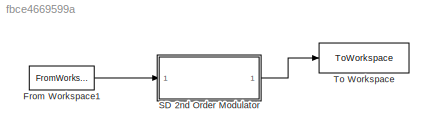
MODEL slx_fbce4669599a
KIND model
CONFIG AbsTol = auto
CONFIG EnableMultiTasking = off
CONFIG FixedStep = auto
CONFIG MaxStep = auto
CONFIG MinStep = auto
CONFIG RelTol = 1e-3
CONFIG SampleTimeConstraint = Unconstrained
CONFIG SolverName = VariableStepAuto
CONFIG StartTime = 0.0
CONFIG StopTime = t_stop
BLOCK [FromWorkspace] From Workspace1
  Interpolate = off
  OutputAfterFinalValue = Holding final value
  SampleTime = ts
  VariableName = simin
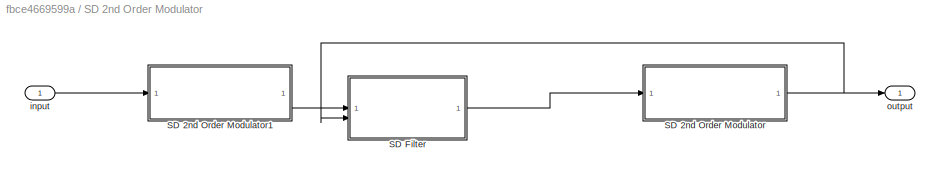
BLOCK [SubSystem] SD 2nd Order Modulator
BLOCK [SubSystem] SD 2nd Order Modulator/SD 2nd Order Modulator
  ReferencedSubsystem = SD_2nd_Order_Modulator
BLOCK [SubSystem] SD 2nd Order Modulator/SD 2nd Order Modulator1
  ReferencedSubsystem = SD_2nd_Order_Modulator
BLOCK [SubSystem] SD 2nd Order Modulator/SD Filter
  ReferencedSubsystem = SD_Filter
BLOCK [Inport] SD 2nd Order Modulator/input
BLOCK [Outport] SD 2nd Order Modulator/output
BLOCK [ToWorkspace] To Workspace
  MaxDataPoints = inf
  SampleTime = -1
  SaveFormat = Structure With Time
  VariableName = filter_output
LINE From Workspace1:1 -> SD 2nd Order Modulator:1
LINE SD 2nd Order Modulator/SD 2nd Order Modulator1:1 -> SD 2nd Order Modulator/SD Filter:1
NET SD 2nd Order Modulator/SD 2nd Order Modulator:1 -> SD 2nd Order Modulator/SD Filter:2, SD 2nd Order Modulator/output:1
LINE SD 2nd Order Modulator/SD Filter:1 -> SD 2nd Order Modulator/SD 2nd Order Modulator:1
LINE SD 2nd Order Modulator/input:1 -> SD 2nd Order Modulator/SD 2nd Order Modulator1:1
LINE SD 2nd Order Modulator:1 -> To Workspace:1
note: NET lines group one-source signal fan-out (src -> all destinations, sorted); 1:1 wires keep LINE
